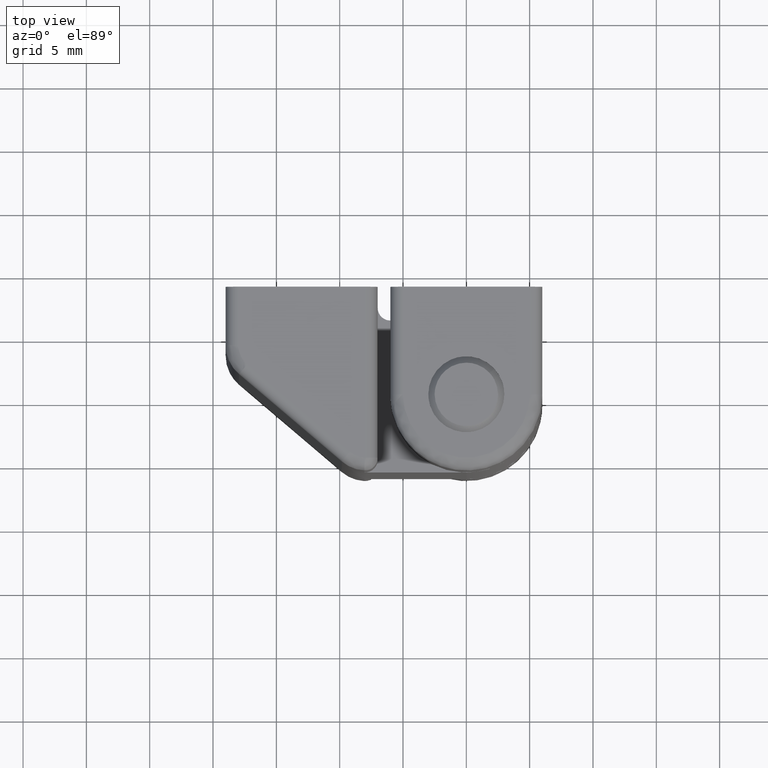
[diagram: clean part render]
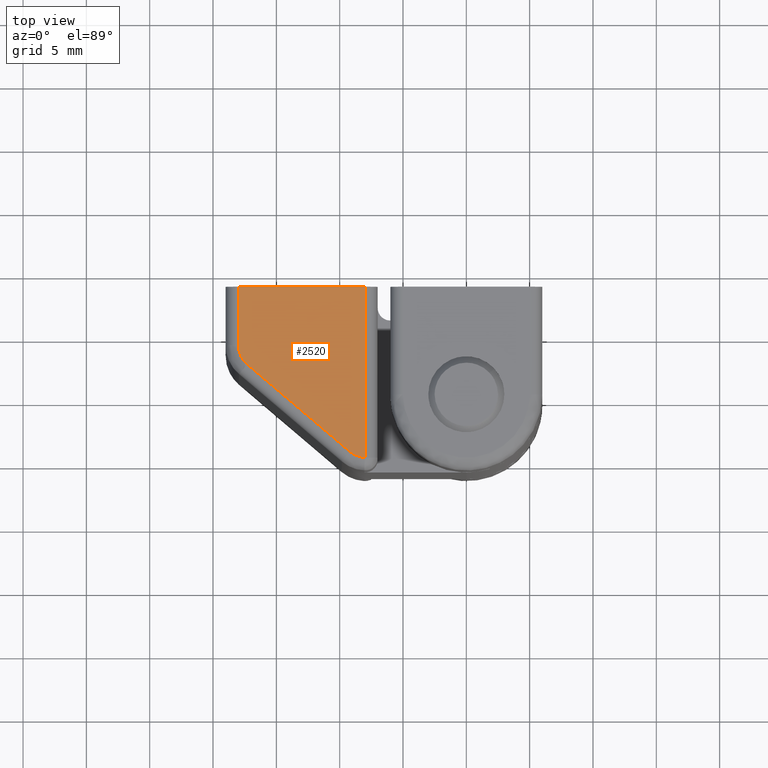
[diagram: same view with one face highlighted and labeled with its STEP entity id]
A machine part, top view. The second image highlights one B-rep face of the part: STEP entity #2520.
In plain terms, the highlighted face is a freeform B-spline surface patch.
Its self-contained STEP definition (entity closure, byte-faithful):
#1960=CARTESIAN_POINT('',(-18.0,3.887321000000000,50.0));
#1961=VERTEX_POINT('',#1960);
#1975=CARTESIAN_POINT('',(-18.0,8.500000000000000,50.0));
#1976=VERTEX_POINT('',#1975);
#1977=CARTESIAN_POINT('',(-18.0,8.500000000000000,50.0));
#1978=CARTESIAN_POINT('',(-18.0,3.887321000000000,50.0));
#1979=QUASI_UNIFORM_CURVE('',1,(#1977,#1978),.UNSPECIFIED.,.F.,.U.);
#1980=EDGE_CURVE('',#1976,#1961,#1979,.T.);
#2024=CARTESIAN_POINT('',(-17.297592187276450,2.365397884407875,50.0));
#2025=VERTEX_POINT('',#2024);
#2039=CARTESIAN_POINT('',(-18.0,3.887321000000000,50.0));
#2040=CARTESIAN_POINT('',(-17.999999631341954,2.964269973234488,50.0));
#2041=CARTESIAN_POINT('',(-17.297592187276450,2.365397884407875,50.0));
#2049=(BOUNDED_CURVE()B_SPLINE_CURVE(2,(#2039,#2040,#2041),.UNSPECIFIED.,.F.,.U.)CURVE()GEOMETRIC_REPRESENTATION_ITEM()QUASI_UNIFORM_CURVE()RATIONAL_B_SPLINE_CURVE((1.0,0.907963782949595,1.0))REPRESENTATION_ITEM(''));
#2050=EDGE_CURVE('',#1961,#2025,#2049,.T.);
#2085=CARTESIAN_POINT('',(-9.189462738233759,-4.526511685921760,50.0));
#2086=VERTEX_POINT('',#2085);
#2102=CARTESIAN_POINT('',(-17.297592187276450,2.365397884407875,50.0));
#2103=CARTESIAN_POINT('',(-9.189462738233759,-4.526511685921760,50.0));
#2104=QUASI_UNIFORM_CURVE('',1,(#2102,#2103),.UNSPECIFIED.,.F.,.U.);
#2105=EDGE_CURVE('',#2025,#2086,#2104,.T.);
#2135=CARTESIAN_POINT('',(-7.999999999999900,-4.997360000000001,50.0));
#2136=VERTEX_POINT('',#2135);
#2150=CARTESIAN_POINT('',(-9.189462738233763,-4.526511685921762,50.0));
#2151=CARTESIAN_POINT('',(-8.674197429405535,-4.962683971055374,50.0));
#2152=CARTESIAN_POINT('',(-7.999999999999900,-4.997360000000001,50.0));
#2160=(BOUNDED_CURVE()B_SPLINE_CURVE(2,(#2150,#2151,#2152),.UNSPECIFIED.,.F.,.U.)CURVE()GEOMETRIC_REPRESENTATION_ITEM()QUASI_UNIFORM_CURVE()RATIONAL_B_SPLINE_CURVE((1.0,0.947479562639466,1.0))REPRESENTATION_ITEM(''));
#2161=EDGE_CURVE('',#2086,#2136,#2160,.T.);
#2260=CARTESIAN_POINT('',(-7.999999999999900,8.500000000000000,50.0));
#2261=VERTEX_POINT('',#2260);
#2275=CARTESIAN_POINT('',(-7.999999999999900,-4.997360000000001,50.0));
#2276=CARTESIAN_POINT('',(-7.999999999999900,8.500000000000000,50.0));
#2277=QUASI_UNIFORM_CURVE('',1,(#2275,#2276),.UNSPECIFIED.,.F.,.U.);
#2278=EDGE_CURVE('',#2136,#2261,#2277,.T.);
#2503=CARTESIAN_POINT('',(-18.499499980618069,-5.671553359246614,50.0));
#2504=CARTESIAN_POINT('',(-7.500499751160933,-5.671553359246614,50.0));
#2505=CARTESIAN_POINT('',(-18.499499980618069,9.174193479922417,50.0));
#2506=CARTESIAN_POINT('',(-7.500499751160933,9.174193479922417,50.0));
#2507=B_SPLINE_SURFACE_WITH_KNOTS('',1,1,((#2503,#2505),(#2504,#2506)),.UNSPECIFIED.,.F.,.F.,.U.,(2,2),(2,2),(0.0,10.999000229457129),(0.0,14.845746839169029),.UNSPECIFIED.);
#2508=CARTESIAN_POINT('',(-18.0,8.500000000000000,50.0));
#2509=CARTESIAN_POINT('',(-7.999999999999900,8.500000000000000,50.0));
#2510=QUASI_UNIFORM_CURVE('',1,(#2508,#2509),.UNSPECIFIED.,.F.,.U.);
#2511=EDGE_CURVE('',#1976,#2261,#2510,.T.);
#2512=ORIENTED_EDGE('',*,*,#2511,.F.);
#2513=ORIENTED_EDGE('',*,*,#1980,.T.);
#2514=ORIENTED_EDGE('',*,*,#2050,.T.);
#2515=ORIENTED_EDGE('',*,*,#2105,.T.);
#2516=ORIENTED_EDGE('',*,*,#2161,.T.);
#2517=ORIENTED_EDGE('',*,*,#2278,.T.);
#2518=EDGE_LOOP('',(#2512,#2513,#2514,#2515,#2516,#2517));
#2519=FACE_OUTER_BOUND('',#2518,.T.);
#2520=ADVANCED_FACE('',(#2519),#2507,.T.);